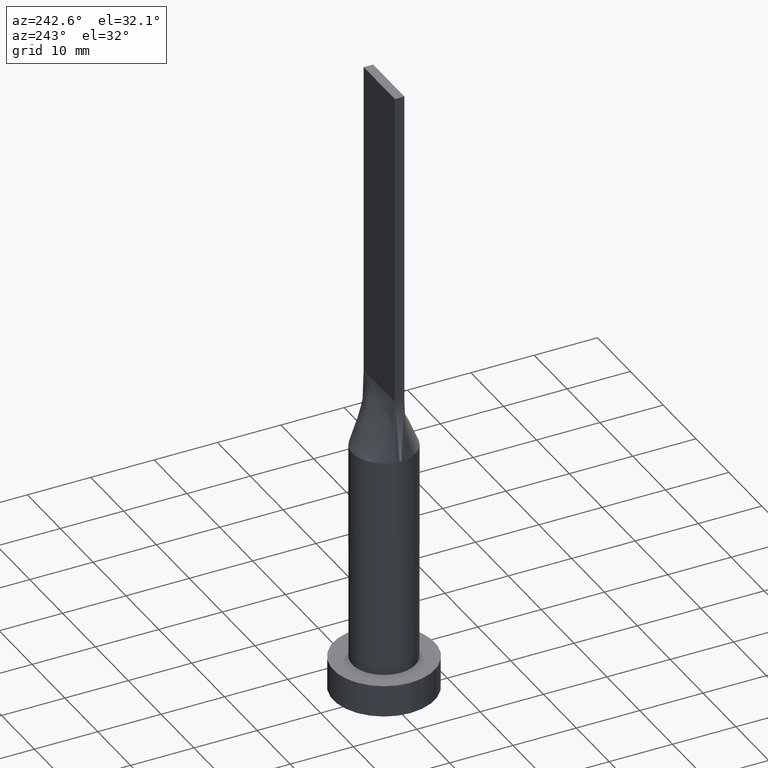
[diagram: clean part render]
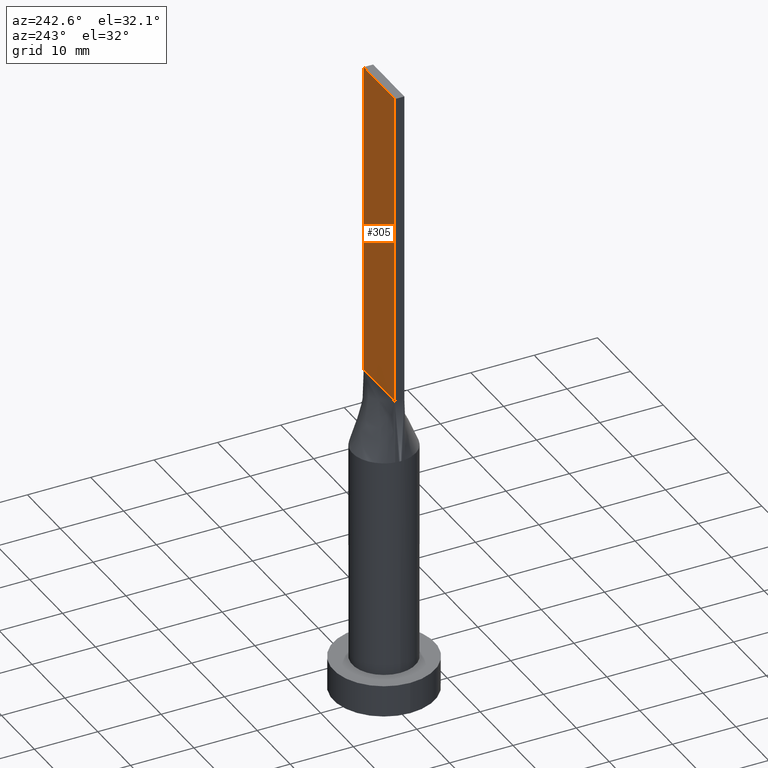
[diagram: same view with one face highlighted and labeled with its STEP entity id]
A machine part, auxiliary view. The second image highlights one B-rep face of the part: STEP entity #305.
In plain terms, the highlighted planar face has unit normal (0, -1, 0).
Its self-contained STEP definition (entity closure, byte-faithful):
#7 = VECTOR ( 'NONE', #244, 1000.000000000000000 ) ;
#18 = EDGE_CURVE ( 'NONE', #597, #28, #220, .T. ) ;
#26 = FACE_OUTER_BOUND ( 'NONE', #228, .T. ) ;
#28 = VERTEX_POINT ( 'NONE', #267 ) ;
#42 = VECTOR ( 'NONE', #363, 1000.000000000000000 ) ;
#52 = LINE ( 'NONE', #204, #7 ) ;
#54 = ORIENTED_EDGE ( 'NONE', *, *, #591, .F. ) ;
#84 = AXIS2_PLACEMENT_3D ( 'NONE', #348, #115, #166 ) ;
#115 = DIRECTION ( 'NONE',  ( 0.000000000000000000, -1.000000000000000000, 0.000000000000000000 ) ) ;
#134 = LINE ( 'NONE', #313, #42 ) ;
#146 = ORIENTED_EDGE ( 'NONE', *, *, #18, .F. ) ;
#161 = PLANE ( 'NONE',  #84 ) ;
#166 = DIRECTION ( 'NONE',  ( 0.000000000000000000, -0.000000000000000000, -1.000000000000000000 ) ) ;
#198 = EDGE_CURVE ( 'NONE', #597, #259, #52, .T. ) ;
#199 = CARTESIAN_POINT ( 'NONE',  ( -4.750000000000000000, 0.7500000000000002220, 50.00000000000000000 ) ) ;
#204 = CARTESIAN_POINT ( 'NONE',  ( 4.750000000000000000, 0.7500000000000002220, 100.0000000000000000 ) ) ;
#210 = ORIENTED_EDGE ( 'NONE', *, *, #368, .T. ) ;
#211 = CARTESIAN_POINT ( 'NONE',  ( 4.750000000000000000, 0.7500000000000002220, 50.00000000000000000 ) ) ;
#220 = LINE ( 'NONE', #302, #438 ) ;
#228 = EDGE_LOOP ( 'NONE', ( #210, #54, #146, #292 ) ) ;
#244 = DIRECTION ( 'NONE',  ( -0.000000000000000000, -0.000000000000000000, -1.000000000000000000 ) ) ;
#249 = VECTOR ( 'NONE', #287, 1000.000000000000000 ) ;
#256 = DIRECTION ( 'NONE',  ( -1.000000000000000000, 0.000000000000000000, 0.000000000000000000 ) ) ;
#259 = VERTEX_POINT ( 'NONE', #211 ) ;
#267 = CARTESIAN_POINT ( 'NONE',  ( -4.750000000000000000, 0.7500000000000002220, 100.0000000000000000 ) ) ;
#287 = DIRECTION ( 'NONE',  ( -0.000000000000000000, -0.000000000000000000, -1.000000000000000000 ) ) ;
#292 = ORIENTED_EDGE ( 'NONE', *, *, #198, .T. ) ;
#302 = CARTESIAN_POINT ( 'NONE',  ( 4.750000000000000000, 0.7500000000000002220, 100.0000000000000000 ) ) ;
#305 = ADVANCED_FACE ( 'NONE', ( #26 ), #161, .F. ) ;
#313 = CARTESIAN_POINT ( 'NONE',  ( -4.750000000000000000, 0.7500000000000002220, 50.00000000000000000 ) ) ;
#348 = CARTESIAN_POINT ( 'NONE',  ( 4.750000000000000000, 0.7500000000000002220, 100.0000000000000000 ) ) ;
#363 = DIRECTION ( 'NONE',  ( -1.000000000000000000, -0.000000000000000000, -0.000000000000000000 ) ) ;
#368 = EDGE_CURVE ( 'NONE', #259, #582, #134, .T. ) ;
#423 = CARTESIAN_POINT ( 'NONE',  ( -4.750000000000000000, 0.7500000000000002220, 100.0000000000000000 ) ) ;
#438 = VECTOR ( 'NONE', #256, 1000.000000000000000 ) ;
#477 = LINE ( 'NONE', #423, #249 ) ;
#525 = CARTESIAN_POINT ( 'NONE',  ( 4.750000000000000000, 0.7500000000000002220, 100.0000000000000000 ) ) ;
#582 = VERTEX_POINT ( 'NONE', #199 ) ;
#591 = EDGE_CURVE ( 'NONE', #28, #582, #477, .T. ) ;
#597 = VERTEX_POINT ( 'NONE', #525 ) ;